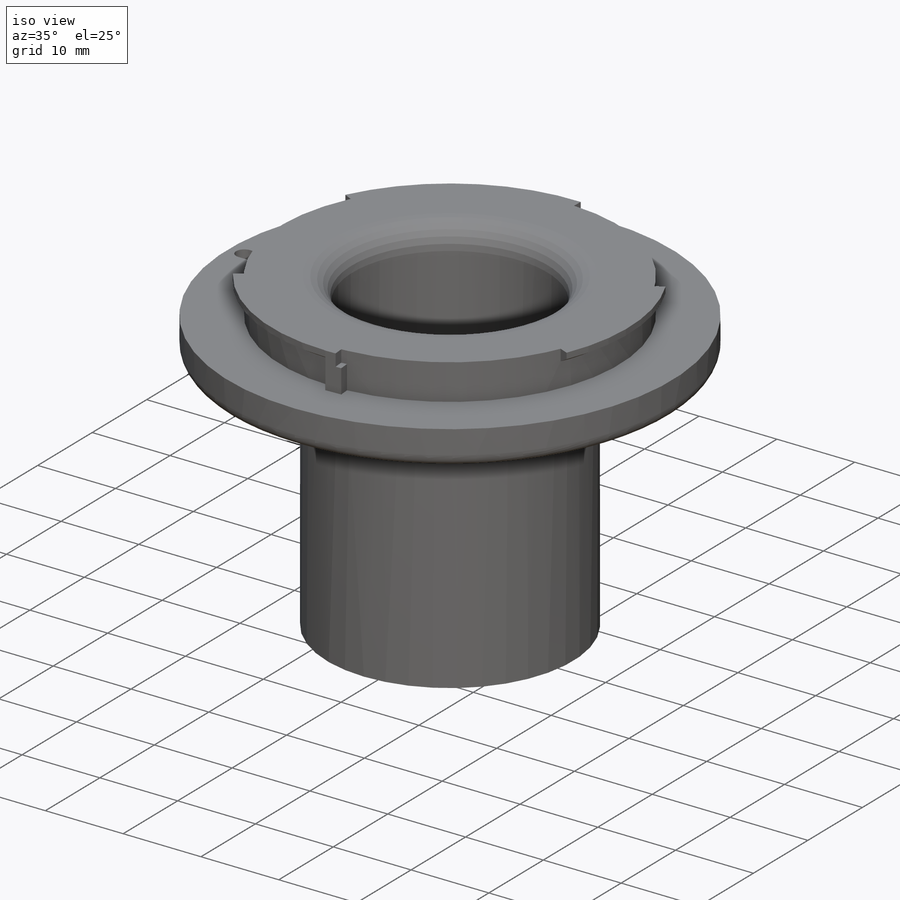
[diagram: iso view]
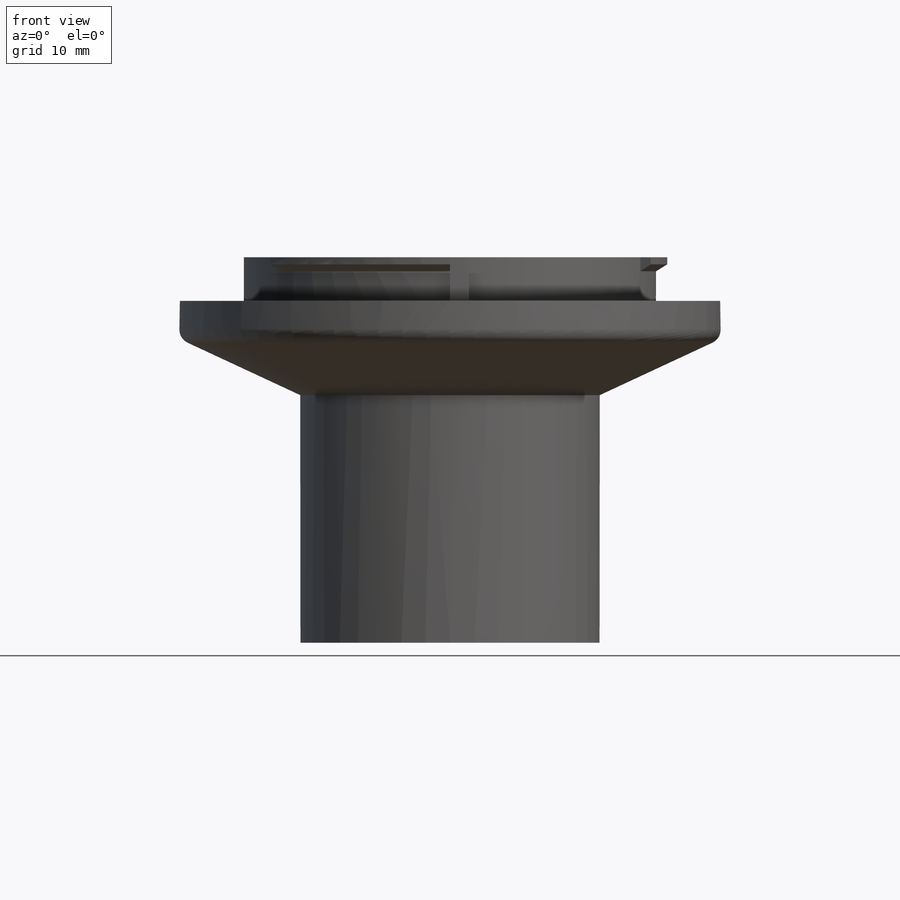
[diagram: front view]
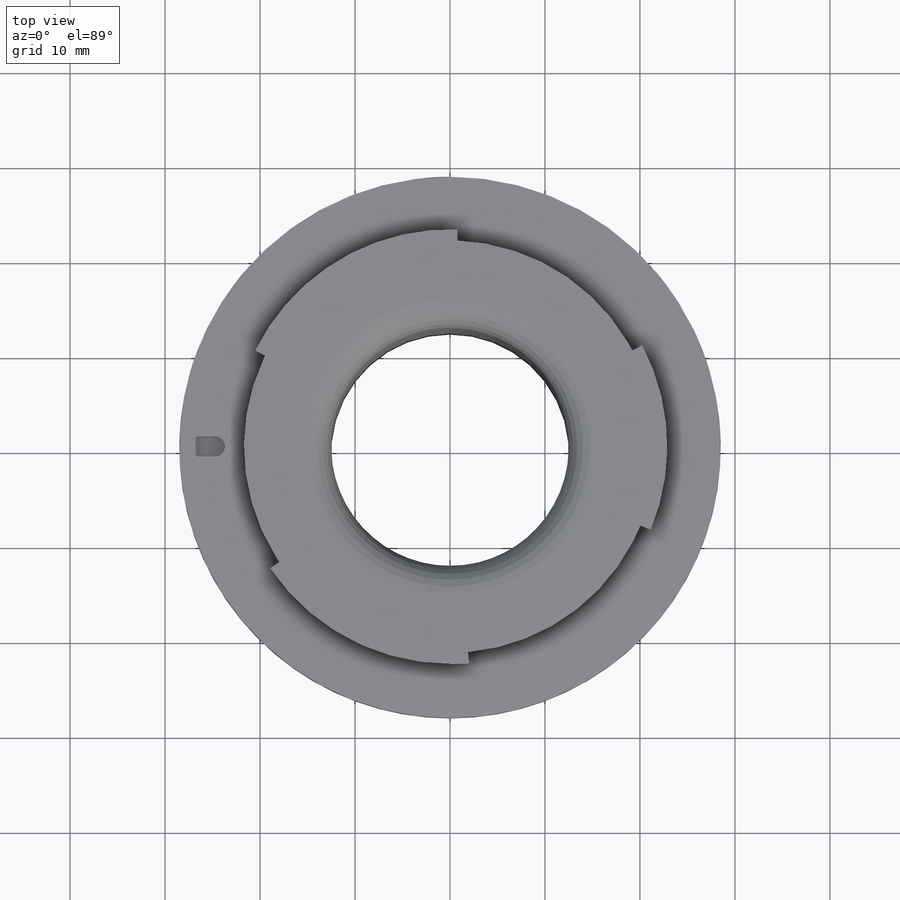
[diagram: top view]
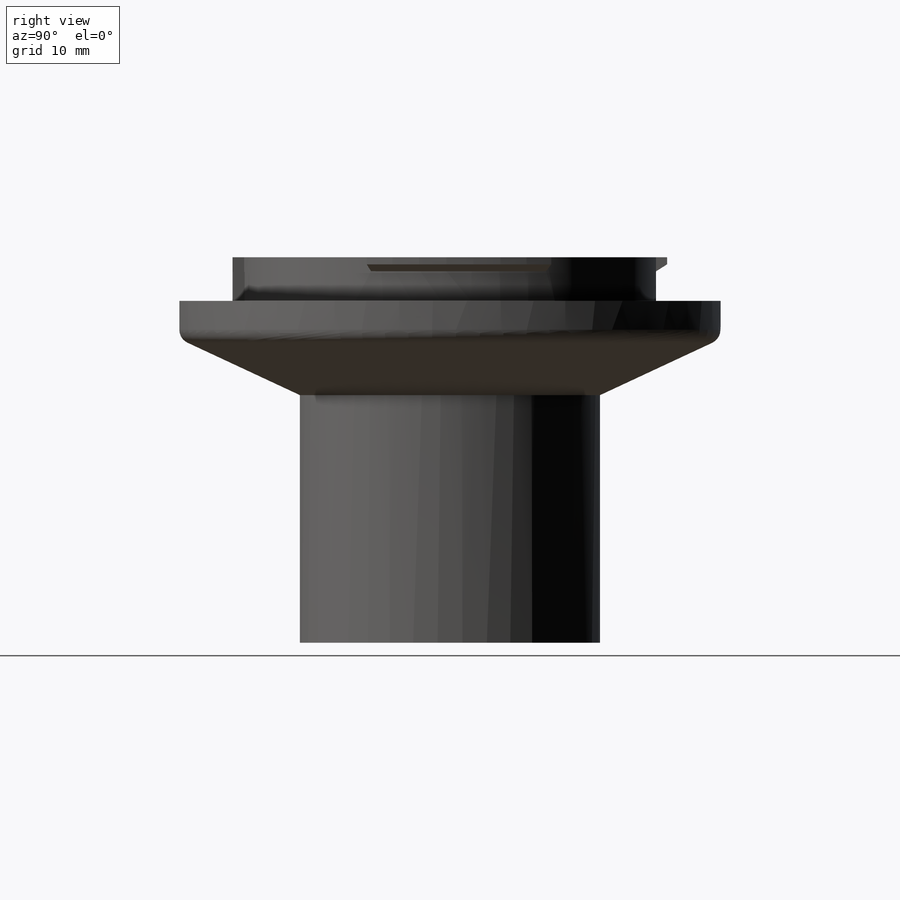
[diagram: right view]
SOLIDWORKS PART (.sldprt)
format: sldprt  version: not decoded by parser v0  size: 881,664 bytes
history: native  units: mm
features: sketch x17, extrude x13, cut_extrude x3, fillet x2, material x1, plane x1, cut_revolve x1 (+12 scaffold rows collapsed)
feature tree (50):
  scaffold x12  (default folders/planes/origin — collapsed)
  material  "Material <not specified>"
  sketch  "Sketch1"  dims[D1=57.0mm]
  extrude  "Main Plate"  Depth=4mm
  sketch  "Sketch2"  dims[D1=43.4mm]
  extrude  "Upper Section"  Depth=4.6mm
  sketch  "Sketch5"  dims[D1=22.9mm]
  extrude  "Straight Pin"  [1 undecoded]
  sketch  "Sketch7"  dims[D1=22.875mm]
  extrude  "Tabs"  Depth=0.75mm
  sketch  "Sketch8"  dims[D4=~52.357393mm D1=0.0mm D2=0.0mm D3=0.0mm]
  extrude  "Tapered Tabs"  Depth=0.75mm
  sketch  "Sketch10"  dims[D1=15.83mm]
  extrude  "Base"  Depth=32mm
  sketch  "Sketch11"  dims[D1=57.0mm]
  extrude  "Tapered Cone"  Depth=28mm
  sketch  "Sketch9"  dims[D1=25.0mm]
  cut_extrude  "Center Hole"  [1 undecoded]
  sketch  "Sketch12"  dims[D1=0.0mm]
  extrude  "Fill In 1"  [1 undecoded]
  sketch  "Sketch13"  dims[D1=0.0mm]
  extrude  "Fill In 2"  [1 undecoded]
  sketch  "Sketch14"  dims[c1.D1=0.0mm c1.D2=0.0mm c2.D1=0.0mm]
  extrude  "Fill In 3"  [1 undecoded]
  sketch  "Sketch15"  dims[D1=0.0mm]
  extrude  "Fill In 4"  [1 undecoded]
  sketch  "Sketch16"  dims[D1=0.0mm]
  extrude  "Fill In 5"  [1 undecoded]
  sketch  "Sketch17"  dims[D1=0.0mm]
  extrude  "Fill In 6"  [1 undecoded]
  sketch  "Sketch18"  dims[D1=~3.334707mm]
  cut_extrude  "Straight Pin Notch"  Depth=0.7mm
  fillet  "Fillet1"  Radius=3mm
  fillet  "Fillet2"  Radius=1.5mm
  sketch  "Sketch24"  dims[D1=1.75mm]
  cut_extrude  "Lock Hole"  Depth=1.5mm
  plane  "Plane1"  Offset=28.5mm
  sketch  "Sketch25"  dims[D1=~6.612031mm]
  cut_revolve  "Marker Hole"  Angle=360deg
decode coverage: 28 of 36 modeling features carry decoded parameters
note: ~ marks probable driven/reference dimensions
note: 8 parameter values undecoded
summary: no parameter record found for 8 features
note: suppression state not decoded; provenance and decode notes live in map.json
